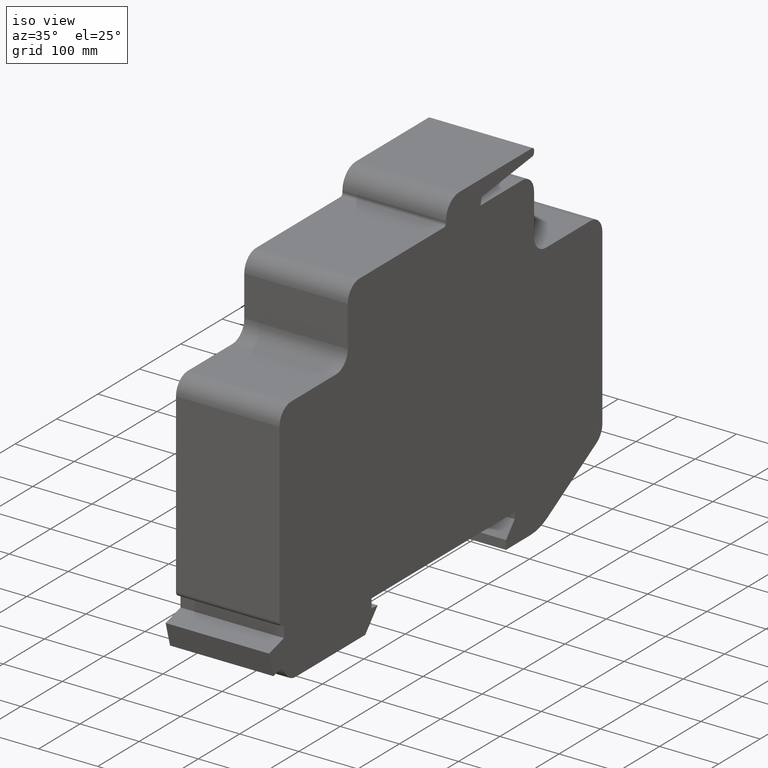
[diagram: clean part render]
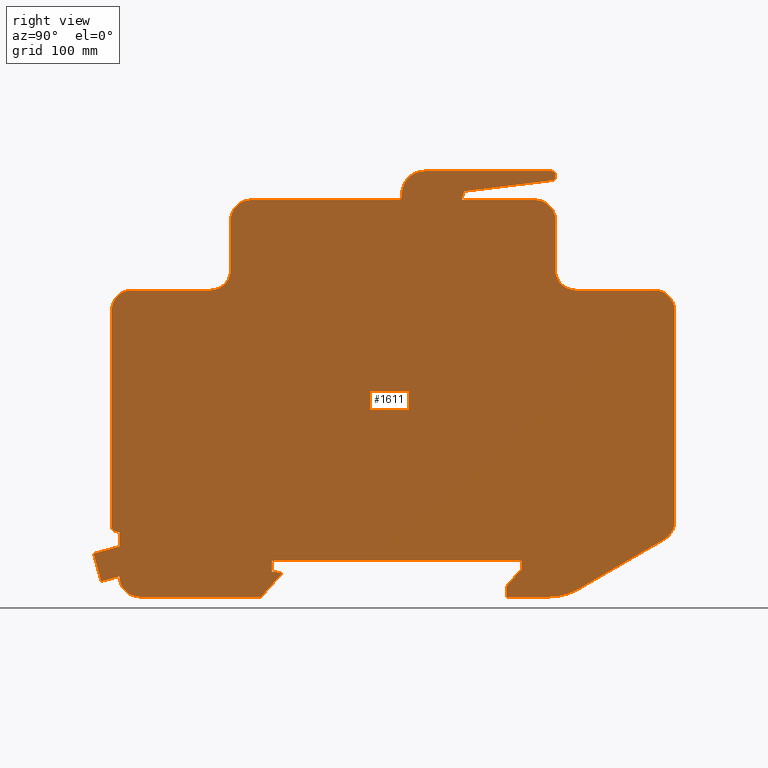
[diagram: tour spotlight — one face highlighted and labeled with its STEP entity id]
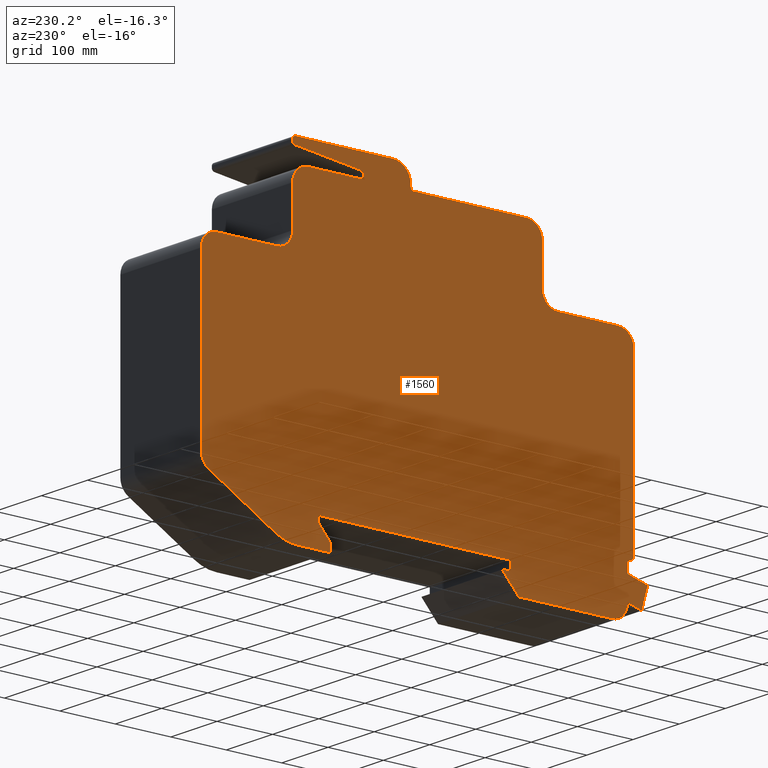
[diagram: tour spotlight — one face highlighted and labeled with its STEP entity id]
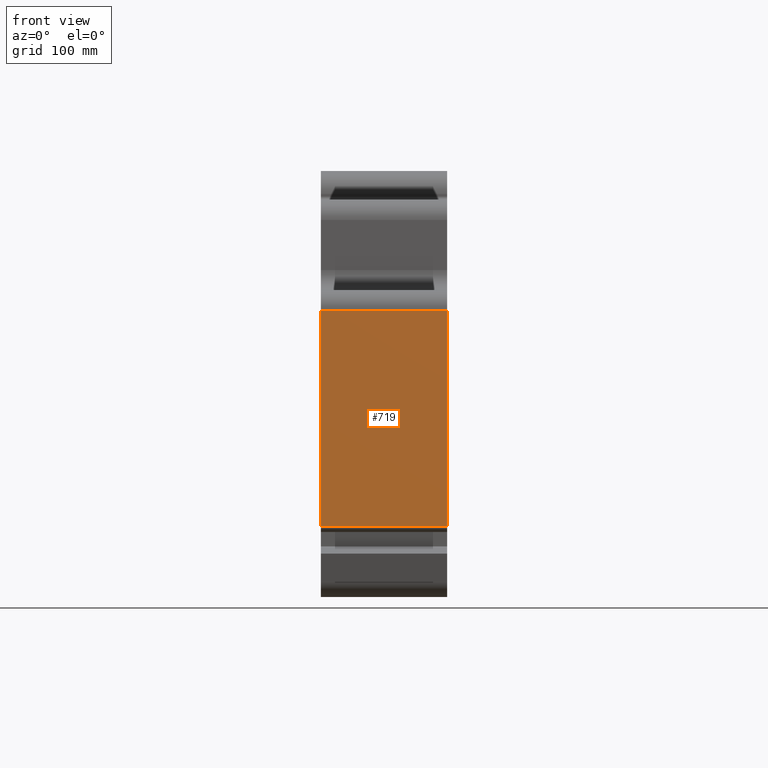
[diagram: tour spotlight — one face highlighted and labeled with its STEP entity id]
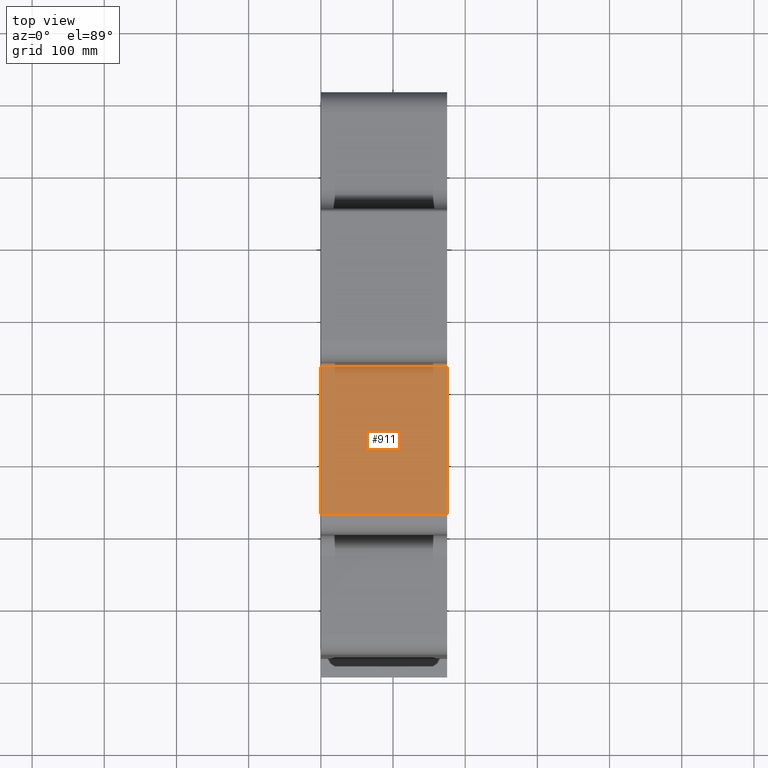
[diagram: tour spotlight — one face highlighted and labeled with its STEP entity id]
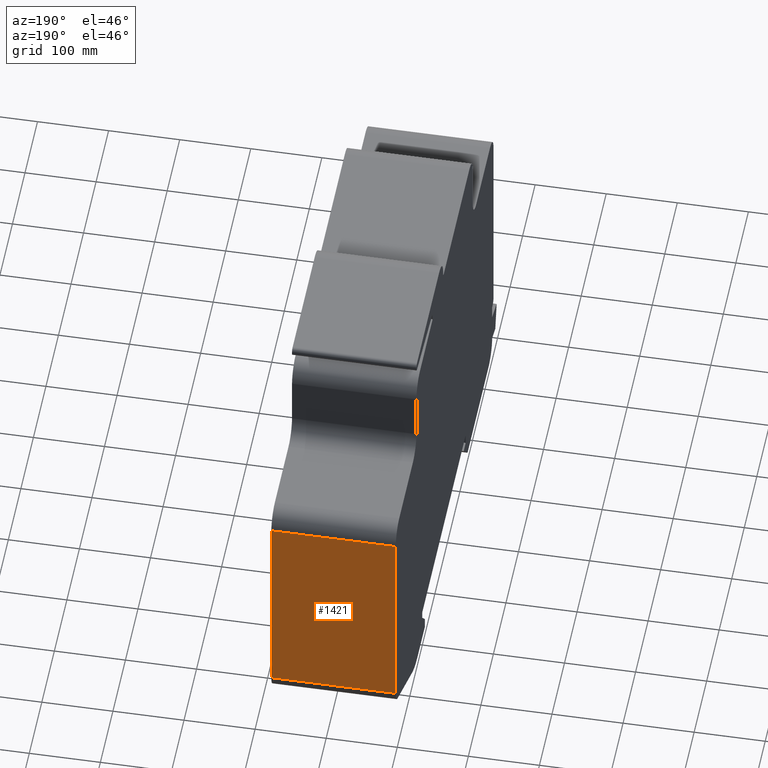
[diagram: tour spotlight — one face highlighted and labeled with its STEP entity id]
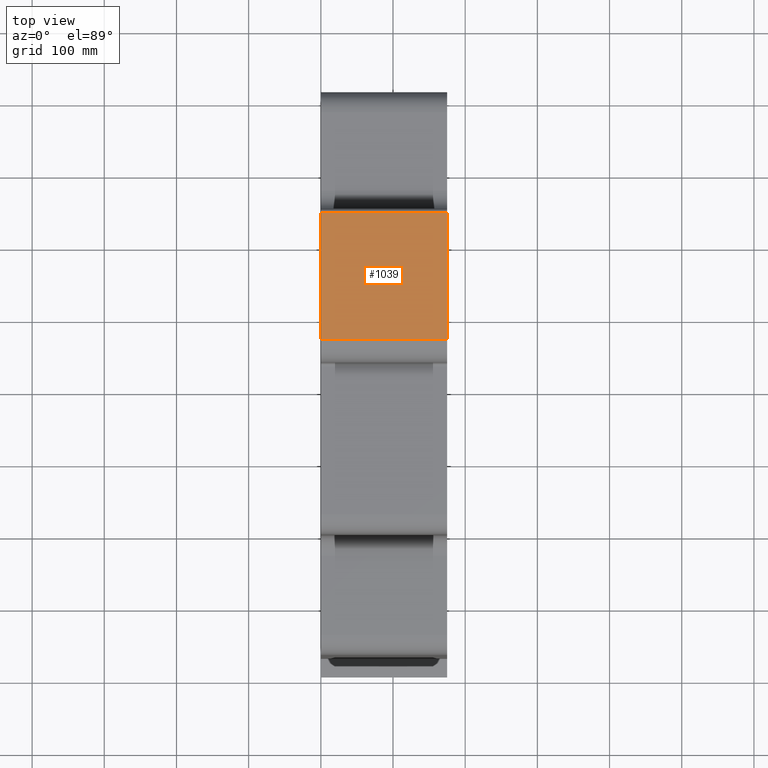
[diagram: tour spotlight — one face highlighted and labeled with its STEP entity id]
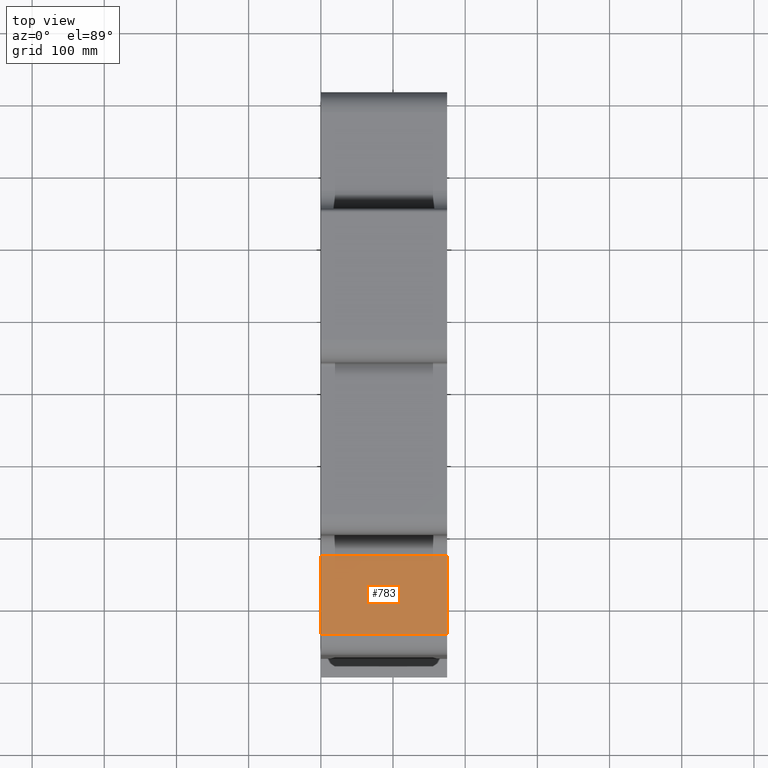
[diagram: tour spotlight — one face highlighted and labeled with its STEP entity id]
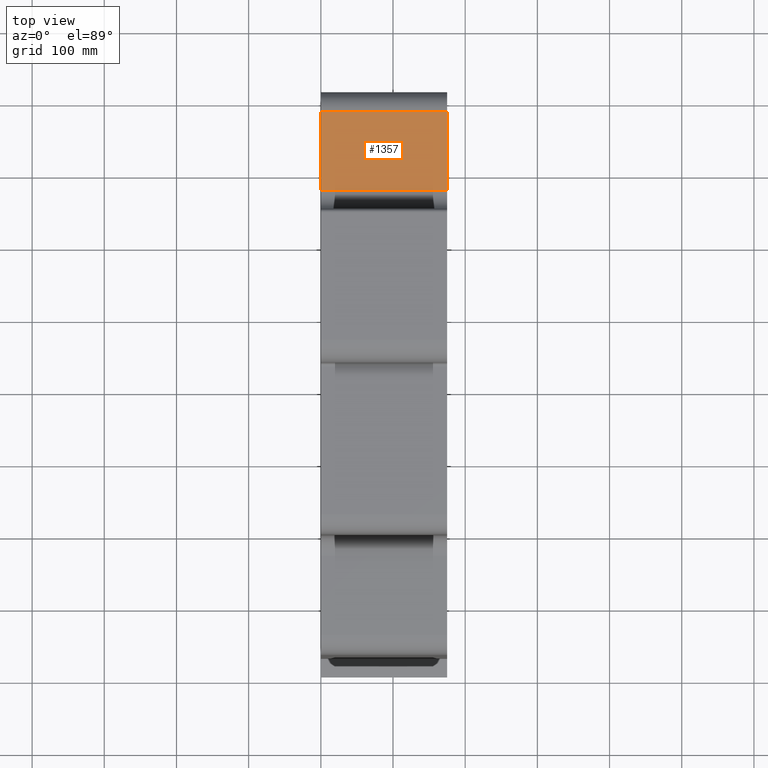
[diagram: tour spotlight — one face highlighted and labeled with its STEP entity id]
A machine part: a face-by-face anatomy tour. The part has 45 B-rep faces; the first image is the clean iso view, then the 8 largest visible faces are spotlighted one at a time (largest first), each with its STEP entity span.

Face 1 — right view, entity #1611. In plain terms, the highlighted planar face has unit normal (-1, 0, 0).
Definition (entity closure, byte-faithful):
#154=CARTESIAN_POINT('',(175.00000000000028,38.312738908399808,-50.0));
#155=VERTEX_POINT('',#154);
#156=CARTESIAN_POINT('',(175.00000000000028,-21.000000000000085,-50.0));
#157=VERTEX_POINT('',#156);
#158=CARTESIAN_POINT('',(175.00000000000028,38.312738908399808,-50.0));
#159=DIRECTION('',(0.0,-1.0,0.0));
#160=VECTOR('',#159,59.312738908399893);
#161=LINE('',#158,#160);
#162=EDGE_CURVE('',#155,#157,#161,.T.);
#194=CARTESIAN_POINT('',(175.00000000000028,-20.999999999999801,-35.000000000000284));
#195=VERTEX_POINT('',#194);
#196=CARTESIAN_POINT('',(175.00000000000028,-21.000000000000085,-50.0));
#197=DIRECTION('',(0.0,0.0,1.0));
#198=VECTOR('',#197,14.999999999999716);
#199=LINE('',#196,#198);
#200=EDGE_CURVE('',#157,#195,#199,.T.);
#225=CARTESIAN_POINT('',(175.00000000000028,0.0,-10.999999999999943));
#226=VERTEX_POINT('',#225);
#227=CARTESIAN_POINT('',(175.00000000000028,-20.999999999999801,-35.000000000000284));
#228=DIRECTION('',(0.0,0.658504607868509,0.752576694706886));
#229=VECTOR('',#228,31.890437438204074);
#230=LINE('',#227,#229);
#231=EDGE_CURVE('',#195,#226,#230,.T.);
#256=CARTESIAN_POINT('',(175.00000000000028,0.0,0.0));
#257=VERTEX_POINT('',#256);
#258=CARTESIAN_POINT('',(175.00000000000028,0.0,-10.999999999999943));
#259=DIRECTION('',(0.0,0.0,1.0));
#260=VECTOR('',#259,10.999999999999943);
#261=LINE('',#258,#260);
#262=EDGE_CURVE('',#226,#257,#261,.T.);
#287=CARTESIAN_POINT('',(175.00000000000028,-345.99999999999994,-3.155444E-029));
#288=VERTEX_POINT('',#287);
#289=CARTESIAN_POINT('',(175.00000000000028,0.0,0.0));
#290=DIRECTION('',(0.0,-1.0,0.0));
#291=VECTOR('',#290,345.99999999999994);
#292=LINE('',#289,#291);
#293=EDGE_CURVE('',#257,#288,#292,.T.);
#318=CARTESIAN_POINT('',(175.00000000000028,-345.99999999999994,-15.000000000000142));
#319=VERTEX_POINT('',#318);
#320=CARTESIAN_POINT('',(175.00000000000028,-345.99999999999994,-3.155444E-029));
#321=DIRECTION('',(0.0,0.0,-1.0));
#322=VECTOR('',#321,15.000000000000142);
#323=LINE('',#320,#322);
#324=EDGE_CURVE('',#288,#319,#323,.T.);
#349=CARTESIAN_POINT('',(175.00000000000028,-330.99999999999994,-16.312329952900058));
#350=VERTEX_POINT('',#349);
#351=CARTESIAN_POINT('',(175.00000000000028,-345.99999999999994,-15.000000000000142));
#352=DIRECTION('',(0.0,0.996194698091682,-0.087155742748387));
#353=VECTOR('',#352,15.057297563151176);
#354=LINE('',#351,#353);
#355=EDGE_CURVE('',#319,#350,#354,.T.);
#380=CARTESIAN_POINT('',(175.00000000000028,-360.99999999999994,-50.0));
#381=VERTEX_POINT('',#380);
#382=CARTESIAN_POINT('',(175.00000000000028,-330.99999999999994,-16.312329952900058));
#383=DIRECTION('',(0.0,-0.665049669487373,-0.74679912768745));
#384=VECTOR('',#383,45.109412689618068);
#385=LINE('',#382,#384);
#386=EDGE_CURVE('',#350,#381,#385,.T.);
#411=CARTESIAN_POINT('',(175.00000000000028,-529.19999999999982,-50.000000000000099));
#412=VERTEX_POINT('',#411);
#413=CARTESIAN_POINT('',(175.00000000000028,-360.99999999999994,-49.999999999999979));
#414=DIRECTION('',(0.0,-1.0,0.0));
#415=VECTOR('',#414,168.19999999999987);
#416=LINE('',#413,#415);
#417=EDGE_CURVE('',#381,#412,#416,.T.);
#442=CARTESIAN_POINT('',(175.00000000000028,-557.20000000000005,-22.000000000000028));
#443=VERTEX_POINT('',#442);
#444=CARTESIAN_POINT('',(175.00000000000028,-529.19999999999982,-21.999999999999972));
#445=DIRECTION('',(-1.0,0.0,0.0));
#446=DIRECTION('',(0.0,-0.707106781186546,-0.707106781186549));
#447=AXIS2_PLACEMENT_3D('',#444,#445,#446);
#448=CIRCLE('',#447,28.000000000000124);
#449=EDGE_CURVE('',#412,#443,#448,.T.);
#475=CARTESIAN_POINT('',(175.00000000000028,-557.20000000000005,-21.514537093899762));
#476=VERTEX_POINT('',#475);
#477=CARTESIAN_POINT('',(175.00000000000028,-557.20000000000005,-22.000000000000028));
#478=DIRECTION('',(0.0,0.0,1.0));
#479=VECTOR('',#478,0.485462906100267);
#480=LINE('',#477,#479);
#481=EDGE_CURVE('',#443,#476,#480,.T.);
#506=CARTESIAN_POINT('',(175.00000000000028,-582.49424544860267,-28.540716385189526));
#507=VERTEX_POINT('',#506);
#508=CARTESIAN_POINT('',(175.00000000000028,-557.20000000000005,-21.514537093899762));
#509=DIRECTION('',(0.0,-0.96351790962983,-0.267643863786493));
#510=VECTOR('',#509,26.251972273478877);
#511=LINE('',#508,#510);
#512=EDGE_CURVE('',#476,#507,#511,.T.);
#537=CARTESIAN_POINT('',(175.00000000000028,-593.20000000004075,9.999999999966299));
#538=VERTEX_POINT('',#537);
#539=CARTESIAN_POINT('',(175.00000000000028,-582.49424544860267,-28.540716385189526));
#540=DIRECTION('',(0.0,-0.267643863786234,0.963517909629902));
#541=VECTOR('',#540,39.999999999958227);
#542=LINE('',#539,#541);
#543=EDGE_CURVE('',#507,#538,#542,.T.);
#568=CARTESIAN_POINT('',(175.00000000000028,-557.20000000000005,20.000000000000455));
#569=VERTEX_POINT('',#568);
#570=CARTESIAN_POINT('',(175.00000000000028,-593.20000000004075,9.999999999966299));
#571=DIRECTION('',(0.0,0.963517909629783,0.267643863786662));
#572=VECTOR('',#571,37.363083384587163);
#573=LINE('',#570,#572);
#574=EDGE_CURVE('',#538,#569,#573,.T.);
#599=CARTESIAN_POINT('',(175.00000000000028,-557.20000000000005,40.0));
#600=VERTEX_POINT('',#599);
#601=CARTESIAN_POINT('',(175.00000000000028,-557.20000000000005,20.000000000000455));
#602=DIRECTION('',(0.0,0.0,1.0));
#603=VECTOR('',#602,19.999999999999545);
#604=LINE('',#601,#603);
#605=EDGE_CURVE('',#569,#600,#604,.T.);
#630=CARTESIAN_POINT('',(175.00000000000028,-560.20000000000005,39.999999999999922));
#631=VERTEX_POINT('',#630);
#632=CARTESIAN_POINT('',(175.00000000000028,-557.20000000000005,40.0));
#633=DIRECTION('',(0.0,-1.0,0.0));
#634=VECTOR('',#633,3.0);
#635=LINE('',#632,#634);
#636=EDGE_CURVE('',#600,#631,#635,.T.);
#661=CARTESIAN_POINT('',(175.00000000000028,-568.20000000000027,47.999999999999972));
#662=VERTEX_POINT('',#661);
#663=CARTESIAN_POINT('',(175.00000000000028,-560.20000000000005,48.000000000000043));
#664=DIRECTION('',(-1.0,0.0,0.0));
#665=DIRECTION('',(0.0,-0.707106781186542,-0.707106781186553));
#666=AXIS2_PLACEMENT_3D('',#663,#664,#665);
#667=CIRCLE('',#666,8.000000000000117);
#668=EDGE_CURVE('',#631,#662,#667,.T.);
#694=CARTESIAN_POINT('',(175.00000000000028,-568.20000000000005,346.99999999999994));
#695=VERTEX_POINT('',#694);
#696=CARTESIAN_POINT('',(175.00000000000028,-568.20000000000027,47.999999999999972));
#697=DIRECTION('',(0.0,0.0,1.0));
#698=VECTOR('',#697,299.0);
#699=LINE('',#696,#698);
#700=EDGE_CURVE('',#662,#695,#699,.T.);
#725=CARTESIAN_POINT('',(175.00000000000028,-540.20000000000005,375.0));
#726=VERTEX_POINT('',#725);
#727=CARTESIAN_POINT('',(175.00000000000028,-540.19999999999993,347.0));
#728=DIRECTION('',(-1.0,0.0,0.0));
#729=DIRECTION('',(0.0,-0.707106781186549,0.707106781186546));
#730=AXIS2_PLACEMENT_3D('',#727,#728,#729);
#731=CIRCLE('',#730,27.999999999999968);
#732=EDGE_CURVE('',#695,#726,#731,.T.);
#758=CARTESIAN_POINT('',(175.00000000000028,-431.19999999999976,375.0));
#759=VERTEX_POINT('',#758);
#760=CARTESIAN_POINT('',(175.00000000000028,-540.20000000000005,375.0));
#761=DIRECTION('',(0.0,1.0,0.0));
#762=VECTOR('',#761,109.00000000000034);
#763=LINE('',#760,#762);
#764=EDGE_CURVE('',#726,#759,#763,.T.);
#789=CARTESIAN_POINT('',(175.00000000000028,-403.19999999999982,403.00000000000023));
#790=VERTEX_POINT('',#789);
#791=CARTESIAN_POINT('',(175.00000000000028,-431.19999999999959,402.99999999999989));
#792=DIRECTION('',(1.0,0.0,0.0));
#793=DIRECTION('',(0.0,0.707106781186551,-0.707106781186544));
#794=AXIS2_PLACEMENT_3D('',#791,#792,#793);
#795=CIRCLE('',#794,27.999999999999918);
#796=EDGE_CURVE('',#759,#790,#795,.T.);
#822=CARTESIAN_POINT('',(175.00000000000028,-403.20000000000022,472.0));
#823=VERTEX_POINT('',#822);
#824=CARTESIAN_POINT('',(175.00000000000028,-403.19999999999982,403.00000000000023));
#825=DIRECTION('',(0.0,0.0,1.0));
#826=VECTOR('',#825,68.999999999999773);
#827=LINE('',#824,#826);
#828=EDGE_CURVE('',#790,#823,#827,.T.);
#853=CARTESIAN_POINT('',(175.00000000000028,-375.2000000000001,499.99999999999994));
#854=VERTEX_POINT('',#853);
#855=CARTESIAN_POINT('',(175.00000000000028,-375.20000000000027,471.99999999999989));
#856=DIRECTION('',(-1.0,0.0,0.0));
#857=DIRECTION('',(0.0,-0.707106781186545,0.70710678118655));
#858=AXIS2_PLACEMENT_3D('',#855,#856,#857);
#859=CIRCLE('',#858,28.000000000000004);
#860=EDGE_CURVE('',#823,#854,#859,.T.);
#886=CARTESIAN_POINT('',(175.00000000000028,-171.20000000000005,499.99999999999994));
#887=VERTEX_POINT('',#886);
#888=CARTESIAN_POINT('',(175.00000000000028,-375.2000000000001,500.00000000000205));
#889=DIRECTION('',(0.0,1.0,0.0));
#890=VECTOR('',#889,204.00000000000006);
#891=LINE('',#888,#890);
#892=EDGE_CURVE('',#854,#887,#891,.T.);
#917=CARTESIAN_POINT('',(175.00000000000028,-166.20000000000005,504.99999999999989));
#918=VERTEX_POINT('',#917);
#919=CARTESIAN_POINT('',(175.00000000000028,-171.20000000000005,504.99999999999989));
#920=DIRECTION('',(1.0,0.0,0.0));
#921=DIRECTION('',(0.0,0.707106781186542,-0.707106781186553));
#922=AXIS2_PLACEMENT_3D('',#919,#920,#921);
#923=CIRCLE('',#922,4.999999999999964);
#924=EDGE_CURVE('',#887,#918,#923,.T.);
#950=CARTESIAN_POINT('',(175.00000000000028,-166.1999999999999,508.00000000000006));
#951=VERTEX_POINT('',#950);
#952=CARTESIAN_POINT('',(175.00000000000028,-166.20000000000005,504.99999999999989));
#953=DIRECTION('',(0.0,0.0,1.0));
#954=VECTOR('',#953,3.000000000000171);
#955=LINE('',#952,#954);
#956=EDGE_CURVE('',#918,#951,#955,.T.);
#981=CARTESIAN_POINT('',(175.00000000000028,-134.19999999999987,540.0));
#982=VERTEX_POINT('',#981);
#983=CARTESIAN_POINT('',(175.00000000000028,-134.19999999999987,508.00000000000006));
#984=DIRECTION('',(-1.0,0.0,0.0));
#985=DIRECTION('',(0.0,-0.707106781186547,0.707106781186548));
#986=AXIS2_PLACEMENT_3D('',#983,#984,#985);
#987=CIRCLE('',#986,31.999999999999989);
#988=EDGE_CURVE('',#951,#982,#987,.T.);
#1014=CARTESIAN_POINT('',(175.00000000000028,41.799999999999784,540.00000000000011));
#1015=VERTEX_POINT('',#1014);
#1016=CARTESIAN_POINT('',(175.00000000000028,-134.19999999999987,540.0));
#1017=DIRECTION('',(0.0,1.0,0.0));
#1018=VECTOR('',#1017,175.99999999999966);
#1019=LINE('',#1016,#1018);
#1020=EDGE_CURVE('',#982,#1015,#1019,.T.);
#1045=CARTESIAN_POINT('',(175.00000000000028,46.799999999999784,535.0));
#1046=VERTEX_POINT('',#1045);
#1047=CARTESIAN_POINT('',(175.00000000000028,41.799999999999784,535.0));
#1048=DIRECTION('',(-1.0,0.0,0.0));
#1049=DIRECTION('',(0.0,0.707106781186553,0.707106781186542));
#1050=AXIS2_PLACEMENT_3D('',#1047,#1048,#1049);
#1051=CIRCLE('',#1050,5.000000000000036);
#1052=EDGE_CURVE('',#1015,#1046,#1051,.T.);
#1078=CARTESIAN_POINT('',(175.00000000000028,46.799999999999784,531.93792574384008));
#1079=VERTEX_POINT('',#1078);
#1080=CARTESIAN_POINT('',(175.00000000000028,46.799999999999784,535.0));
#1081=DIRECTION('',(0.0,0.0,-1.0));
#1082=VECTOR('',#1081,3.062074256159917);
#1083=LINE('',#1080,#1082);
#1084=EDGE_CURVE('',#1046,#1079,#1083,.T.);
#1109=CARTESIAN_POINT('',(175.00000000000028,42.409346717013108,526.97519498563202));
#1110=VERTEX_POINT('',#1109);
#1111=CARTESIAN_POINT('',(175.00000000000028,41.799999999999642,531.93792574384008));
#1112=DIRECTION('',(-1.0,0.0,0.0));
#1113=DIRECTION('',(0.0,0.748955720788176,-0.662620048216672));
#1114=AXIS2_PLACEMENT_3D('',#1111,#1112,#1113);
#1115=CIRCLE('',#1114,5.000000000000018);
#1116=EDGE_CURVE('',#1079,#1110,#1115,.T.);
#1142=CARTESIAN_POINT('',(175.00000000000028,-79.553829072486621,511.99999999999699));
#1143=VERTEX_POINT('',#1142);
#1144=CARTESIAN_POINT('',(175.00000000000028,42.409346717013108,526.97519498563202));
#1145=DIRECTION('',(0.0,-0.992546151641325,-0.121869343405127));
#1146=VECTOR('',#1145,122.87909795208543);
#1147=LINE('',#1144,#1146);
#1148=EDGE_CURVE('',#1110,#1143,#1147,.T.);
#1173=CARTESIAN_POINT('',(175.00000000000028,-82.769219381656853,500.0));
#1174=VERTEX_POINT('',#1173);
#1175=CARTESIAN_POINT('',(175.00000000000028,-79.553829072486621,511.99999999999699));
#1176=DIRECTION('',(0.0,-0.258819045102338,-0.965925826289117));
#1177=VECTOR('',#1176,12.423314164917247);
#1178=LINE('',#1175,#1177);
#1179=EDGE_CURVE('',#1143,#1174,#1178,.T.);
#1204=CARTESIAN_POINT('',(175.00000000000028,18.799999999999955,500.00000000000006));
#1205=VERTEX_POINT('',#1204);
#1206=CARTESIAN_POINT('',(175.00000000000028,-82.769219381656853,500.00000000000358));
#1207=DIRECTION('',(0.0,1.0,0.0));
#1208=VECTOR('',#1207,101.56921938165681);
#1209=LINE('',#1206,#1208);
#1210=EDGE_CURVE('',#1174,#1205,#1209,.T.);
#1235=CARTESIAN_POINT('',(175.00000000000028,46.799999999999926,471.99999999999994));
#1236=VERTEX_POINT('',#1235);
#1237=CARTESIAN_POINT('',(175.00000000000028,18.799999999999955,472.0));
#1238=DIRECTION('',(-1.0,0.0,0.0));
#1239=DIRECTION('',(0.0,0.707106781186549,0.707106781186546));
#1240=AXIS2_PLACEMENT_3D('',#1237,#1238,#1239);
#1241=CIRCLE('',#1240,28.000000000000039);
#1242=EDGE_CURVE('',#1205,#1236,#1241,.T.);
#1268=CARTESIAN_POINT('',(175.00000000000028,46.799999999999784,403.0));
#1269=VERTEX_POINT('',#1268);
#1270=CARTESIAN_POINT('',(175.00000000000028,46.799999999999926,471.99999999999994));
#1271=DIRECTION('',(0.0,0.0,-1.0));
#1272=VECTOR('',#1271,69.0);
#1273=LINE('',#1270,#1272);
#1274=EDGE_CURVE('',#1236,#1269,#1273,.T.);
#1299=CARTESIAN_POINT('',(175.00000000000028,74.799999999999898,374.99999999999994));
#1300=VERTEX_POINT('',#1299);
#1301=CARTESIAN_POINT('',(175.00000000000028,74.799999999999898,403.0));
#1302=DIRECTION('',(1.0,0.0,0.0));
#1303=DIRECTION('',(0.0,-0.707106781186547,-0.707106781186548));
#1304=AXIS2_PLACEMENT_3D('',#1301,#1302,#1303);
#1305=CIRCLE('',#1304,28.000000000000075);
#1306=EDGE_CURVE('',#1269,#1300,#1305,.T.);
#1332=CARTESIAN_POINT('',(175.00000000000028,183.79999999999995,375.0));
#1333=VERTEX_POINT('',#1332);
#1334=CARTESIAN_POINT('',(175.00000000000028,74.799999999999898,374.99999999999994));
#1335=DIRECTION('',(0.0,1.0,0.0));
#1336=VECTOR('',#1335,109.00000000000006);
#1337=LINE('',#1334,#1336);
#1338=EDGE_CURVE('',#1300,#1333,#1337,.T.);
#1363=CARTESIAN_POINT('',(175.00000000000028,211.80000000000007,346.99999999999994));
#1364=VERTEX_POINT('',#1363);
#1365=CARTESIAN_POINT('',(175.00000000000028,183.79999999999995,346.99999999999989));
#1366=DIRECTION('',(-1.0,0.0,0.0));
#1367=DIRECTION('',(0.0,0.707106781186547,0.707106781186548));
#1368=AXIS2_PLACEMENT_3D('',#1365,#1366,#1367);
#1369=CIRCLE('',#1368,28.000000000000075);
#1370=EDGE_CURVE('',#1333,#1364,#1369,.T.);
#1396=CARTESIAN_POINT('',(175.00000000000028,211.79999999999978,54.143471326499935));
#1397=VERTEX_POINT('',#1396);
#1398=CARTESIAN_POINT('',(175.00000000000028,211.80000000000007,346.99999999999994));
#1399=DIRECTION('',(0.0,0.0,-1.0));
#1400=VECTOR('',#1399,292.85652867350001);
#1401=LINE('',#1398,#1400);
#1402=EDGE_CURVE('',#1364,#1397,#1401,.T.);
#1427=CARTESIAN_POINT('',(175.00000000000028,197.82901557516368,29.911535333025952));
#1428=VERTEX_POINT('',#1427);
#1429=CARTESIAN_POINT('',(175.00000000000028,183.79999999999995,54.143471326499494));
#1430=DIRECTION('',(-1.0,0.0,0.0));
#1431=DIRECTION('',(0.0,0.866324497674392,-0.499481595986491));
#1432=AXIS2_PLACEMENT_3D('',#1429,#1430,#1431);
#1433=CIRCLE('',#1432,27.999999999999623);
#1434=EDGE_CURVE('',#1397,#1428,#1433,.T.);
#1460=CARTESIAN_POINT('',(175.00000000000028,78.395640551724313,-39.234102838497108));
#1461=VERTEX_POINT('',#1460);
#1462=CARTESIAN_POINT('',(175.00000000000028,197.82901557516368,29.911535333025952));
#1463=DIRECTION('',(0.0,-0.865426285480943,-0.50103627054202));
#1464=VECTOR('',#1463,138.00525478269549);
#1465=LINE('',#1462,#1464);
#1466=EDGE_CURVE('',#1428,#1461,#1465,.T.);
#1491=CARTESIAN_POINT('',(175.00000000000028,38.31273890839995,29.999999999999901));
#1492=DIRECTION('',(-1.0,0.0,0.0));
#1493=DIRECTION('',(0.0,0.259397103413651,-0.965770750613523));
#1494=AXIS2_PLACEMENT_3D('',#1491,#1492,#1493);
#1495=CIRCLE('',#1494,79.999999999999901);
#1496=EDGE_CURVE('',#1461,#155,#1495,.T.);
#1561=CARTESIAN_POINT('',(175.00000000000028,38.312738908399808,-50.0));
#1562=DIRECTION('',(-1.0,0.0,0.0));
#1563=DIRECTION('',(0.0,0.0,1.0));
#1564=AXIS2_PLACEMENT_3D('',#1561,#1562,#1563);
#1565=PLANE('',#1564);
#1566=ORIENTED_EDGE('',*,*,#162,.F.);
#1567=ORIENTED_EDGE('',*,*,#1496,.F.);
#1568=ORIENTED_EDGE('',*,*,#1466,.F.);
#1569=ORIENTED_EDGE('',*,*,#1434,.F.);
#1570=ORIENTED_EDGE('',*,*,#1402,.F.);
#1571=ORIENTED_EDGE('',*,*,#1370,.F.);
#1572=ORIENTED_EDGE('',*,*,#1338,.F.);
#1573=ORIENTED_EDGE('',*,*,#1306,.F.);
#1574=ORIENTED_EDGE('',*,*,#1274,.F.);
#1575=ORIENTED_EDGE('',*,*,#1242,.F.);
#1576=ORIENTED_EDGE('',*,*,#1210,.F.);
#1577=ORIENTED_EDGE('',*,*,#1179,.F.);
#1578=ORIENTED_EDGE('',*,*,#1148,.F.);
#1579=ORIENTED_EDGE('',*,*,#1116,.F.);
#1580=ORIENTED_EDGE('',*,*,#1084,.F.);
#1581=ORIENTED_EDGE('',*,*,#1052,.F.);
#1582=ORIENTED_EDGE('',*,*,#1020,.F.);
#1583=ORIENTED_EDGE('',*,*,#988,.F.);
#1584=ORIENTED_EDGE('',*,*,#956,.F.);
#1585=ORIENTED_EDGE('',*,*,#924,.F.);
#1586=ORIENTED_EDGE('',*,*,#892,.F.);
#1587=ORIENTED_EDGE('',*,*,#860,.F.);
#1588=ORIENTED_EDGE('',*,*,#828,.F.);
#1589=ORIENTED_EDGE('',*,*,#796,.F.);
#1590=ORIENTED_EDGE('',*,*,#764,.F.);
#1591=ORIENTED_EDGE('',*,*,#732,.F.);
#1592=ORIENTED_EDGE('',*,*,#700,.F.);
#1593=ORIENTED_EDGE('',*,*,#668,.F.);
#1594=ORIENTED_EDGE('',*,*,#636,.F.);
#1595=ORIENTED_EDGE('',*,*,#605,.F.);
#1596=ORIENTED_EDGE('',*,*,#574,.F.);
#1597=ORIENTED_EDGE('',*,*,#543,.F.);
#1598=ORIENTED_EDGE('',*,*,#512,.F.);
#1599=ORIENTED_EDGE('',*,*,#481,.F.);
#1600=ORIENTED_EDGE('',*,*,#449,.F.);
#1601=ORIENTED_EDGE('',*,*,#417,.F.);
#1602=ORIENTED_EDGE('',*,*,#386,.F.);
#1603=ORIENTED_EDGE('',*,*,#355,.F.);
#1604=ORIENTED_EDGE('',*,*,#324,.F.);
#1605=ORIENTED_EDGE('',*,*,#293,.F.);
#1606=ORIENTED_EDGE('',*,*,#262,.F.);
#1607=ORIENTED_EDGE('',*,*,#231,.F.);
#1608=ORIENTED_EDGE('',*,*,#200,.F.);
#1609=EDGE_LOOP('',(#1566,#1567,#1568,#1569,#1570,#1571,#1572,#1573,#1574,#1575,#1576,#1577,#1578,#1579,#1580,#1581,#1582,#1583,#1584,#1585,#1586,#1587,#1588,#1589,#1590,#1591,#1592,#1593,#1594,#1595,#1596,#1597,#1598,#1599,#1600,#1601,#1602,#1603,#1604,#1605,#1606,#1607,#1608));
#1610=FACE_OUTER_BOUND('',#1609,.T.);
#1611=ADVANCED_FACE('',(#1610),#1565,.F.);

Face 2 — auxiliary view, entity #1560. In plain terms, the highlighted planar face has unit normal (-1, 0, 0).
Definition (entity closure, byte-faithful):
#164=CARTESIAN_POINT('',(0.0,-21.000000000000085,-50.0));
#165=VERTEX_POINT('',#164);
#172=CARTESIAN_POINT('',(0.0,38.312738908399808,-50.0));
#173=VERTEX_POINT('',#172);
#174=CARTESIAN_POINT('',(0.0,38.312738908399808,-50.0));
#175=DIRECTION('',(0.0,-1.0,0.0));
#176=VECTOR('',#175,59.312738908399893);
#177=LINE('',#174,#176);
#178=EDGE_CURVE('',#173,#165,#177,.T.);
#202=CARTESIAN_POINT('',(0.0,-20.999999999999801,-35.000000000000284));
#203=VERTEX_POINT('',#202);
#210=CARTESIAN_POINT('',(0.0,-21.000000000000085,-50.0));
#211=DIRECTION('',(0.0,0.0,1.0));
#212=VECTOR('',#211,14.999999999999716);
#213=LINE('',#210,#212);
#214=EDGE_CURVE('',#165,#203,#213,.T.);
#233=CARTESIAN_POINT('',(0.0,0.0,-10.999999999999943));
#234=VERTEX_POINT('',#233);
#241=CARTESIAN_POINT('',(0.0,-20.999999999999801,-35.000000000000284));
#242=DIRECTION('',(0.0,0.658504607868509,0.752576694706886));
#243=VECTOR('',#242,31.890437438204074);
#244=LINE('',#241,#243);
#245=EDGE_CURVE('',#203,#234,#244,.T.);
#264=CARTESIAN_POINT('',(0.0,0.0,0.0));
#265=VERTEX_POINT('',#264);
#272=CARTESIAN_POINT('',(0.0,0.0,-10.999999999999943));
#273=DIRECTION('',(0.0,0.0,1.0));
#274=VECTOR('',#273,10.999999999999943);
#275=LINE('',#272,#274);
#276=EDGE_CURVE('',#234,#265,#275,.T.);
#295=CARTESIAN_POINT('',(0.0,-345.99999999999994,-3.155444E-029));
#296=VERTEX_POINT('',#295);
#303=CARTESIAN_POINT('',(0.0,0.0,0.0));
#304=DIRECTION('',(0.0,-1.0,0.0));
#305=VECTOR('',#304,345.99999999999994);
#306=LINE('',#303,#305);
#307=EDGE_CURVE('',#265,#296,#306,.T.);
#326=CARTESIAN_POINT('',(0.0,-345.99999999999994,-15.000000000000142));
#327=VERTEX_POINT('',#326);
#334=CARTESIAN_POINT('',(0.0,-345.99999999999994,-3.155444E-029));
#335=DIRECTION('',(0.0,0.0,-1.0));
#336=VECTOR('',#335,15.000000000000142);
#337=LINE('',#334,#336);
#338=EDGE_CURVE('',#296,#327,#337,.T.);
#357=CARTESIAN_POINT('',(0.0,-330.99999999999994,-16.312329952900058));
#358=VERTEX_POINT('',#357);
#365=CARTESIAN_POINT('',(0.0,-345.99999999999994,-15.000000000000142));
#366=DIRECTION('',(0.0,0.996194698091682,-0.087155742748387));
#367=VECTOR('',#366,15.057297563151176);
#368=LINE('',#365,#367);
#369=EDGE_CURVE('',#327,#358,#368,.T.);
#388=CARTESIAN_POINT('',(0.0,-360.99999999999994,-50.0));
#389=VERTEX_POINT('',#388);
#396=CARTESIAN_POINT('',(0.0,-330.99999999999994,-16.312329952900058));
#397=DIRECTION('',(0.0,-0.665049669487373,-0.74679912768745));
#398=VECTOR('',#397,45.109412689618068);
#399=LINE('',#396,#398);
#400=EDGE_CURVE('',#358,#389,#399,.T.);
#419=CARTESIAN_POINT('',(0.0,-529.19999999999982,-50.000000000000099));
#420=VERTEX_POINT('',#419);
#427=CARTESIAN_POINT('',(0.0,-360.99999999999994,-50.0));
#428=DIRECTION('',(0.0,-1.0,0.0));
#429=VECTOR('',#428,168.19999999999987);
#430=LINE('',#427,#429);
#431=EDGE_CURVE('',#389,#420,#430,.T.);
#451=CARTESIAN_POINT('',(0.0,-557.20000000000005,-22.000000000000028));
#452=VERTEX_POINT('',#451);
#459=CARTESIAN_POINT('',(0.0,-529.19999999999982,-21.999999999999972));
#460=DIRECTION('',(-1.0,0.0,0.0));
#461=DIRECTION('',(0.0,-0.707106781186546,-0.707106781186549));
#462=AXIS2_PLACEMENT_3D('',#459,#460,#461);
#463=CIRCLE('',#462,28.000000000000124);
#464=EDGE_CURVE('',#420,#452,#463,.T.);
#483=CARTESIAN_POINT('',(0.0,-557.20000000000005,-21.514537093899762));
#484=VERTEX_POINT('',#483);
#491=CARTESIAN_POINT('',(0.0,-557.20000000000005,-22.000000000000028));
#492=DIRECTION('',(0.0,0.0,1.0));
#493=VECTOR('',#492,0.485462906100267);
#494=LINE('',#491,#493);
#495=EDGE_CURVE('',#452,#484,#494,.T.);
#514=CARTESIAN_POINT('',(0.0,-582.49424544860267,-28.540716385189526));
#515=VERTEX_POINT('',#514);
#522=CARTESIAN_POINT('',(0.0,-557.20000000000005,-21.514537093899762));
#523=DIRECTION('',(0.0,-0.96351790962983,-0.267643863786493));
#524=VECTOR('',#523,26.251972273478877);
#525=LINE('',#522,#524);
#526=EDGE_CURVE('',#484,#515,#525,.T.);
#545=CARTESIAN_POINT('',(0.0,-593.20000000004075,9.999999999966299));
#546=VERTEX_POINT('',#545);
#553=CARTESIAN_POINT('',(0.0,-582.49424544860267,-28.540716385189526));
#554=DIRECTION('',(0.0,-0.267643863786234,0.963517909629902));
#555=VECTOR('',#554,39.999999999958227);
#556=LINE('',#553,#555);
#557=EDGE_CURVE('',#515,#546,#556,.T.);
#576=CARTESIAN_POINT('',(0.0,-557.20000000000005,20.000000000000455));
#577=VERTEX_POINT('',#576);
#584=CARTESIAN_POINT('',(0.0,-593.20000000004075,9.999999999966299));
#585=DIRECTION('',(0.0,0.963517909629783,0.267643863786662));
#586=VECTOR('',#585,37.363083384587163);
#587=LINE('',#584,#586);
#588=EDGE_CURVE('',#546,#577,#587,.T.);
#607=CARTESIAN_POINT('',(0.0,-557.20000000000005,40.0));
#608=VERTEX_POINT('',#607);
#615=CARTESIAN_POINT('',(0.0,-557.20000000000005,20.000000000000455));
#616=DIRECTION('',(0.0,0.0,1.0));
#617=VECTOR('',#616,19.999999999999545);
#618=LINE('',#615,#617);
#619=EDGE_CURVE('',#577,#608,#618,.T.);
#638=CARTESIAN_POINT('',(0.0,-560.20000000000005,39.999999999999922));
#639=VERTEX_POINT('',#638);
#646=CARTESIAN_POINT('',(0.0,-557.20000000000005,40.0));
#647=DIRECTION('',(0.0,-1.0,0.0));
#648=VECTOR('',#647,3.0);
#649=LINE('',#646,#648);
#650=EDGE_CURVE('',#608,#639,#649,.T.);
#670=CARTESIAN_POINT('',(0.0,-568.20000000000027,47.999999999999972));
#671=VERTEX_POINT('',#670);
#678=CARTESIAN_POINT('',(0.0,-560.20000000000005,48.000000000000043));
#679=DIRECTION('',(-1.0,0.0,0.0));
#680=DIRECTION('',(0.0,-0.707106781186542,-0.707106781186553));
#681=AXIS2_PLACEMENT_3D('',#678,#679,#680);
#682=CIRCLE('',#681,8.000000000000117);
#683=EDGE_CURVE('',#639,#671,#682,.T.);
#702=CARTESIAN_POINT('',(0.0,-568.20000000000005,346.99999999999994));
#703=VERTEX_POINT('',#702);
#710=CARTESIAN_POINT('',(0.0,-568.20000000000027,47.999999999999972));
#711=DIRECTION('',(0.0,0.0,1.0));
#712=VECTOR('',#711,299.0);
#713=LINE('',#710,#712);
#714=EDGE_CURVE('',#671,#703,#713,.T.);
#734=CARTESIAN_POINT('',(0.0,-540.20000000000005,375.0));
#735=VERTEX_POINT('',#734);
#742=CARTESIAN_POINT('',(0.0,-540.19999999999993,347.0));
#743=DIRECTION('',(-1.0,0.0,0.0));
#744=DIRECTION('',(0.0,-0.707106781186549,0.707106781186546));
#745=AXIS2_PLACEMENT_3D('',#742,#743,#744);
#746=CIRCLE('',#745,27.999999999999968);
#747=EDGE_CURVE('',#703,#735,#746,.T.);
#766=CARTESIAN_POINT('',(0.0,-431.19999999999976,375.0));
#767=VERTEX_POINT('',#766);
#774=CARTESIAN_POINT('',(0.0,-540.20000000000005,375.0));
#775=DIRECTION('',(0.0,1.0,0.0));
#776=VECTOR('',#775,109.00000000000034);
#777=LINE('',#774,#776);
#778=EDGE_CURVE('',#735,#767,#777,.T.);
#798=CARTESIAN_POINT('',(0.0,-403.19999999999982,403.00000000000023));
#799=VERTEX_POINT('',#798);
#806=CARTESIAN_POINT('',(0.0,-431.19999999999959,402.99999999999989));
#807=DIRECTION('',(1.0,0.0,0.0));
#808=DIRECTION('',(0.0,0.707106781186551,-0.707106781186544));
#809=AXIS2_PLACEMENT_3D('',#806,#807,#808);
#810=CIRCLE('',#809,27.999999999999918);
#811=EDGE_CURVE('',#767,#799,#810,.T.);
#830=CARTESIAN_POINT('',(0.0,-403.20000000000022,472.0));
#831=VERTEX_POINT('',#830);
#838=CARTESIAN_POINT('',(0.0,-403.19999999999982,403.00000000000023));
#839=DIRECTION('',(0.0,0.0,1.0));
#840=VECTOR('',#839,68.999999999999773);
#841=LINE('',#838,#840);
#842=EDGE_CURVE('',#799,#831,#841,.T.);
#862=CARTESIAN_POINT('',(0.0,-375.2000000000001,499.99999999999994));
#863=VERTEX_POINT('',#862);
#870=CARTESIAN_POINT('',(0.0,-375.20000000000027,471.99999999999989));
#871=DIRECTION('',(-1.0,0.0,0.0));
#872=DIRECTION('',(0.0,-0.707106781186545,0.70710678118655));
#873=AXIS2_PLACEMENT_3D('',#870,#871,#872);
#874=CIRCLE('',#873,28.000000000000004);
#875=EDGE_CURVE('',#831,#863,#874,.T.);
#894=CARTESIAN_POINT('',(0.0,-171.20000000000005,499.99999999999994));
#895=VERTEX_POINT('',#894);
#902=CARTESIAN_POINT('',(0.0,-375.2000000000001,499.99999999999994));
#903=DIRECTION('',(0.0,1.0,0.0));
#904=VECTOR('',#903,204.00000000000006);
#905=LINE('',#902,#904);
#906=EDGE_CURVE('',#863,#895,#905,.T.);
#926=CARTESIAN_POINT('',(0.0,-166.20000000000005,504.99999999999989));
#927=VERTEX_POINT('',#926);
#934=CARTESIAN_POINT('',(0.0,-171.20000000000005,504.99999999999989));
#935=DIRECTION('',(1.0,0.0,0.0));
#936=DIRECTION('',(0.0,0.707106781186542,-0.707106781186553));
#937=AXIS2_PLACEMENT_3D('',#934,#935,#936);
#938=CIRCLE('',#937,4.999999999999964);
#939=EDGE_CURVE('',#895,#927,#938,.T.);
#958=CARTESIAN_POINT('',(0.0,-166.1999999999999,508.00000000000006));
#959=VERTEX_POINT('',#958);
#966=CARTESIAN_POINT('',(0.0,-166.20000000000005,504.99999999999989));
#967=DIRECTION('',(0.0,0.0,1.0));
#968=VECTOR('',#967,3.000000000000171);
#969=LINE('',#966,#968);
#970=EDGE_CURVE('',#927,#959,#969,.T.);
#990=CARTESIAN_POINT('',(0.0,-134.19999999999987,540.0));
#991=VERTEX_POINT('',#990);
#998=CARTESIAN_POINT('',(0.0,-134.19999999999987,508.00000000000006));
#999=DIRECTION('',(-1.0,0.0,0.0));
#1000=DIRECTION('',(0.0,-0.707106781186547,0.707106781186548));
#1001=AXIS2_PLACEMENT_3D('',#998,#999,#1000);
#1002=CIRCLE('',#1001,31.999999999999989);
#1003=EDGE_CURVE('',#959,#991,#1002,.T.);
#1022=CARTESIAN_POINT('',(0.0,41.799999999999784,540.00000000000011));
#1023=VERTEX_POINT('',#1022);
#1030=CARTESIAN_POINT('',(0.0,-134.19999999999987,540.0));
#1031=DIRECTION('',(0.0,1.0,0.0));
#1032=VECTOR('',#1031,175.99999999999966);
#1033=LINE('',#1030,#1032);
#1034=EDGE_CURVE('',#991,#1023,#1033,.T.);
#1054=CARTESIAN_POINT('',(0.0,46.799999999999784,535.0));
#1055=VERTEX_POINT('',#1054);
#1062=CARTESIAN_POINT('',(0.0,41.799999999999784,535.0));
#1063=DIRECTION('',(-1.0,0.0,0.0));
#1064=DIRECTION('',(0.0,0.707106781186553,0.707106781186542));
#1065=AXIS2_PLACEMENT_3D('',#1062,#1063,#1064);
#1066=CIRCLE('',#1065,5.000000000000036);
#1067=EDGE_CURVE('',#1023,#1055,#1066,.T.);
#1086=CARTESIAN_POINT('',(0.0,46.799999999999784,531.93792574384008));
#1087=VERTEX_POINT('',#1086);
#1094=CARTESIAN_POINT('',(0.0,46.799999999999784,535.0));
#1095=DIRECTION('',(0.0,0.0,-1.0));
#1096=VECTOR('',#1095,3.062074256159917);
#1097=LINE('',#1094,#1096);
#1098=EDGE_CURVE('',#1055,#1087,#1097,.T.);
#1118=CARTESIAN_POINT('',(0.0,42.409346717013108,526.97519498563202));
#1119=VERTEX_POINT('',#1118);
#1126=CARTESIAN_POINT('',(0.0,41.799999999999642,531.93792574384008));
#1127=DIRECTION('',(-1.0,0.0,0.0));
#1128=DIRECTION('',(0.0,0.748955720788176,-0.662620048216672));
#1129=AXIS2_PLACEMENT_3D('',#1126,#1127,#1128);
#1130=CIRCLE('',#1129,5.000000000000018);
#1131=EDGE_CURVE('',#1087,#1119,#1130,.T.);
#1150=CARTESIAN_POINT('',(0.0,-79.553829072486621,511.99999999999699));
#1151=VERTEX_POINT('',#1150);
#1158=CARTESIAN_POINT('',(0.0,42.409346717013108,526.97519498563202));
#1159=DIRECTION('',(0.0,-0.992546151641325,-0.121869343405127));
#1160=VECTOR('',#1159,122.87909795208543);
#1161=LINE('',#1158,#1160);
#1162=EDGE_CURVE('',#1119,#1151,#1161,.T.);
#1181=CARTESIAN_POINT('',(0.0,-82.769219381656853,500.0));
#1182=VERTEX_POINT('',#1181);
#1189=CARTESIAN_POINT('',(0.0,-79.553829072486621,511.99999999999699));
#1190=DIRECTION('',(0.0,-0.258819045102338,-0.965925826289117));
#1191=VECTOR('',#1190,12.423314164917247);
#1192=LINE('',#1189,#1191);
#1193=EDGE_CURVE('',#1151,#1182,#1192,.T.);
#1212=CARTESIAN_POINT('',(0.0,18.799999999999955,500.00000000000006));
#1213=VERTEX_POINT('',#1212);
#1220=CARTESIAN_POINT('',(0.0,-82.769219381656853,500.0));
#1221=DIRECTION('',(0.0,1.0,1.969975E-013));
#1222=VECTOR('',#1221,101.56921938165681);
#1223=LINE('',#1220,#1222);
#1224=EDGE_CURVE('',#1182,#1213,#1223,.T.);
#1244=CARTESIAN_POINT('',(0.0,46.799999999999926,471.99999999999994));
#1245=VERTEX_POINT('',#1244);
#1252=CARTESIAN_POINT('',(0.0,18.799999999999955,472.0));
#1253=DIRECTION('',(-1.0,0.0,0.0));
#1254=DIRECTION('',(0.0,0.707106781186549,0.707106781186546));
#1255=AXIS2_PLACEMENT_3D('',#1252,#1253,#1254);
#1256=CIRCLE('',#1255,28.000000000000039);
#1257=EDGE_CURVE('',#1213,#1245,#1256,.T.);
#1276=CARTESIAN_POINT('',(0.0,46.799999999999784,403.0));
#1277=VERTEX_POINT('',#1276);
#1284=CARTESIAN_POINT('',(0.0,46.799999999999926,471.99999999999994));
#1285=DIRECTION('',(0.0,0.0,-1.0));
#1286=VECTOR('',#1285,69.0);
#1287=LINE('',#1284,#1286);
#1288=EDGE_CURVE('',#1245,#1277,#1287,.T.);
#1308=CARTESIAN_POINT('',(0.0,74.799999999999898,374.99999999999994));
#1309=VERTEX_POINT('',#1308);
#1316=CARTESIAN_POINT('',(0.0,74.799999999999898,403.0));
#1317=DIRECTION('',(1.0,0.0,0.0));
#1318=DIRECTION('',(0.0,-0.707106781186547,-0.707106781186548));
#1319=AXIS2_PLACEMENT_3D('',#1316,#1317,#1318);
#1320=CIRCLE('',#1319,28.000000000000075);
#1321=EDGE_CURVE('',#1277,#1309,#1320,.T.);
#1340=CARTESIAN_POINT('',(0.0,183.79999999999995,375.0));
#1341=VERTEX_POINT('',#1340);
#1348=CARTESIAN_POINT('',(0.0,74.799999999999898,374.99999999999994));
#1349=DIRECTION('',(0.0,1.0,0.0));
#1350=VECTOR('',#1349,109.00000000000006);
#1351=LINE('',#1348,#1350);
#1352=EDGE_CURVE('',#1309,#1341,#1351,.T.);
#1372=CARTESIAN_POINT('',(0.0,211.80000000000007,346.99999999999994));
#1373=VERTEX_POINT('',#1372);
#1380=CARTESIAN_POINT('',(0.0,183.79999999999995,346.99999999999989));
#1381=DIRECTION('',(-1.0,0.0,0.0));
#1382=DIRECTION('',(0.0,0.707106781186547,0.707106781186548));
#1383=AXIS2_PLACEMENT_3D('',#1380,#1381,#1382);
#1384=CIRCLE('',#1383,28.000000000000075);
#1385=EDGE_CURVE('',#1341,#1373,#1384,.T.);
#1404=CARTESIAN_POINT('',(0.0,211.79999999999978,54.143471326499935));
#1405=VERTEX_POINT('',#1404);
#1412=CARTESIAN_POINT('',(0.0,211.80000000000007,346.99999999999994));
#1413=DIRECTION('',(0.0,0.0,-1.0));
#1414=VECTOR('',#1413,292.85652867350001);
#1415=LINE('',#1412,#1414);
#1416=EDGE_CURVE('',#1373,#1405,#1415,.T.);
#1436=CARTESIAN_POINT('',(0.0,197.82901557516368,29.911535333025952));
#1437=VERTEX_POINT('',#1436);
#1444=CARTESIAN_POINT('',(0.0,183.79999999999995,54.143471326499494));
#1445=DIRECTION('',(-1.0,0.0,0.0));
#1446=DIRECTION('',(0.0,0.866324497674392,-0.499481595986491));
#1447=AXIS2_PLACEMENT_3D('',#1444,#1445,#1446);
#1448=CIRCLE('',#1447,27.999999999999623);
#1449=EDGE_CURVE('',#1405,#1437,#1448,.T.);
#1468=CARTESIAN_POINT('',(0.0,78.395640551724313,-39.234102838497108));
#1469=VERTEX_POINT('',#1468);
#1476=CARTESIAN_POINT('',(0.0,197.82901557516368,29.911535333025952));
#1477=DIRECTION('',(0.0,-0.865426285480943,-0.50103627054202));
#1478=VECTOR('',#1477,138.00525478269549);
#1479=LINE('',#1476,#1478);
#1480=EDGE_CURVE('',#1437,#1469,#1479,.T.);
#1499=CARTESIAN_POINT('',(0.0,38.31273890839995,29.999999999999901));
#1500=DIRECTION('',(-1.0,0.0,0.0));
#1501=DIRECTION('',(0.0,0.259397103413651,-0.965770750613523));
#1502=AXIS2_PLACEMENT_3D('',#1499,#1500,#1501);
#1503=CIRCLE('',#1502,79.999999999999901);
#1504=EDGE_CURVE('',#1469,#173,#1503,.T.);
#1510=CARTESIAN_POINT('',(2.486900E-013,-191.90193956231639,258.71095243054549));
#1511=DIRECTION('',(-1.0,0.0,0.0));
#1512=DIRECTION('',(0.0,0.0,1.0));
#1513=AXIS2_PLACEMENT_3D('',#1510,#1511,#1512);
#1514=PLANE('',#1513);
#1515=ORIENTED_EDGE('',*,*,#1504,.T.);
#1516=ORIENTED_EDGE('',*,*,#178,.T.);
#1517=ORIENTED_EDGE('',*,*,#214,.T.);
#1518=ORIENTED_EDGE('',*,*,#245,.T.);
#1519=ORIENTED_EDGE('',*,*,#276,.T.);
#1520=ORIENTED_EDGE('',*,*,#307,.T.);
#1521=ORIENTED_EDGE('',*,*,#338,.T.);
#1522=ORIENTED_EDGE('',*,*,#369,.T.);
#1523=ORIENTED_EDGE('',*,*,#400,.T.);
#1524=ORIENTED_EDGE('',*,*,#431,.T.);
#1525=ORIENTED_EDGE('',*,*,#464,.T.);
#1526=ORIENTED_EDGE('',*,*,#495,.T.);
#1527=ORIENTED_EDGE('',*,*,#526,.T.);
#1528=ORIENTED_EDGE('',*,*,#557,.T.);
#1529=ORIENTED_EDGE('',*,*,#588,.T.);
#1530=ORIENTED_EDGE('',*,*,#619,.T.);
#1531=ORIENTED_EDGE('',*,*,#650,.T.);
#1532=ORIENTED_EDGE('',*,*,#683,.T.);
#1533=ORIENTED_EDGE('',*,*,#714,.T.);
#1534=ORIENTED_EDGE('',*,*,#747,.T.);
#1535=ORIENTED_EDGE('',*,*,#778,.T.);
#1536=ORIENTED_EDGE('',*,*,#811,.T.);
#1537=ORIENTED_EDGE('',*,*,#842,.T.);
#1538=ORIENTED_EDGE('',*,*,#875,.T.);
#1539=ORIENTED_EDGE('',*,*,#906,.T.);
#1540=ORIENTED_EDGE('',*,*,#939,.T.);
#1541=ORIENTED_EDGE('',*,*,#970,.T.);
#1542=ORIENTED_EDGE('',*,*,#1003,.T.);
#1543=ORIENTED_EDGE('',*,*,#1034,.T.);
#1544=ORIENTED_EDGE('',*,*,#1067,.T.);
#1545=ORIENTED_EDGE('',*,*,#1098,.T.);
#1546=ORIENTED_EDGE('',*,*,#1131,.T.);
#1547=ORIENTED_EDGE('',*,*,#1162,.T.);
#1548=ORIENTED_EDGE('',*,*,#1193,.T.);
#1549=ORIENTED_EDGE('',*,*,#1224,.T.);
#1550=ORIENTED_EDGE('',*,*,#1257,.T.);
#1551=ORIENTED_EDGE('',*,*,#1288,.T.);
#1552=ORIENTED_EDGE('',*,*,#1321,.T.);
#1553=ORIENTED_EDGE('',*,*,#1352,.T.);
#1554=ORIENTED_EDGE('',*,*,#1385,.T.);
#1555=ORIENTED_EDGE('',*,*,#1416,.T.);
#1556=ORIENTED_EDGE('',*,*,#1449,.T.);
#1557=ORIENTED_EDGE('',*,*,#1480,.T.);
#1558=EDGE_LOOP('',(#1515,#1516,#1517,#1518,#1519,#1520,#1521,#1522,#1523,#1524,#1525,#1526,#1527,#1528,#1529,#1530,#1531,#1532,#1533,#1534,#1535,#1536,#1537,#1538,#1539,#1540,#1541,#1542,#1543,#1544,#1545,#1546,#1547,#1548,#1549,#1550,#1551,#1552,#1553,#1554,#1555,#1556,#1557));
#1559=FACE_OUTER_BOUND('',#1558,.T.);
#1560=ADVANCED_FACE('',(#1559),#1514,.T.);

Face 3 — front view, entity #719. In plain terms, the highlighted planar face has unit normal (0, -1, 0).
Definition (entity closure, byte-faithful):
#661=CARTESIAN_POINT('',(175.00000000000028,-568.20000000000027,47.999999999999972));
#662=VERTEX_POINT('',#661);
#670=CARTESIAN_POINT('',(0.0,-568.20000000000027,47.999999999999972));
#671=VERTEX_POINT('',#670);
#672=CARTESIAN_POINT('',(0.0,-568.20000000000027,47.999999999999972));
#673=DIRECTION('',(1.0,0.0,0.0));
#674=VECTOR('',#673,175.00000000000028);
#675=LINE('',#672,#674);
#676=EDGE_CURVE('',#671,#662,#675,.T.);
#689=CARTESIAN_POINT('',(0.0,-568.20000000000027,47.999999999999972));
#690=DIRECTION('',(0.0,-1.0,0.0));
#691=DIRECTION('',(0.0,0.0,-1.0));
#692=AXIS2_PLACEMENT_3D('',#689,#690,#691);
#693=PLANE('',#692);
#694=CARTESIAN_POINT('',(175.00000000000028,-568.20000000000005,346.99999999999994));
#695=VERTEX_POINT('',#694);
#696=CARTESIAN_POINT('',(175.00000000000028,-568.20000000000027,47.999999999999972));
#697=DIRECTION('',(0.0,0.0,1.0));
#698=VECTOR('',#697,299.0);
#699=LINE('',#696,#698);
#700=EDGE_CURVE('',#662,#695,#699,.T.);
#701=ORIENTED_EDGE('',*,*,#700,.T.);
#702=CARTESIAN_POINT('',(0.0,-568.20000000000005,346.99999999999994));
#703=VERTEX_POINT('',#702);
#704=CARTESIAN_POINT('',(0.0,-568.20000000000005,346.99999999999994));
#705=DIRECTION('',(1.0,0.0,0.0));
#706=VECTOR('',#705,175.00000000000028);
#707=LINE('',#704,#706);
#708=EDGE_CURVE('',#703,#695,#707,.T.);
#709=ORIENTED_EDGE('',*,*,#708,.F.);
#710=CARTESIAN_POINT('',(0.0,-568.20000000000027,47.999999999999972));
#711=DIRECTION('',(0.0,0.0,1.0));
#712=VECTOR('',#711,299.0);
#713=LINE('',#710,#712);
#714=EDGE_CURVE('',#671,#703,#713,.T.);
#715=ORIENTED_EDGE('',*,*,#714,.F.);
#716=ORIENTED_EDGE('',*,*,#676,.T.);
#717=EDGE_LOOP('',(#701,#709,#715,#716));
#718=FACE_OUTER_BOUND('',#717,.T.);
#719=ADVANCED_FACE('',(#718),#693,.T.);

Face 4 — top view, entity #911. In plain terms, the highlighted planar face has unit normal (0, 0, 1).
Definition (entity closure, byte-faithful):
#853=CARTESIAN_POINT('',(175.00000000000028,-375.2000000000001,499.99999999999994));
#854=VERTEX_POINT('',#853);
#862=CARTESIAN_POINT('',(0.0,-375.2000000000001,499.99999999999994));
#863=VERTEX_POINT('',#862);
#864=CARTESIAN_POINT('',(0.0,-375.2000000000001,499.99999999999994));
#865=DIRECTION('',(1.0,0.0,0.0));
#866=VECTOR('',#865,175.00000000000028);
#867=LINE('',#864,#866);
#868=EDGE_CURVE('',#863,#854,#867,.T.);
#881=CARTESIAN_POINT('',(0.0,-184.85769145390009,500.00000000000006));
#882=DIRECTION('',(0.0,0.0,1.0));
#883=DIRECTION('',(1.0,0.0,0.0));
#884=AXIS2_PLACEMENT_3D('',#881,#882,#883);
#885=PLANE('',#884);
#886=CARTESIAN_POINT('',(175.00000000000028,-171.20000000000005,499.99999999999994));
#887=VERTEX_POINT('',#886);
#888=CARTESIAN_POINT('',(175.00000000000028,-375.2000000000001,500.00000000000205));
#889=DIRECTION('',(0.0,1.0,0.0));
#890=VECTOR('',#889,204.00000000000006);
#891=LINE('',#888,#890);
#892=EDGE_CURVE('',#854,#887,#891,.T.);
#893=ORIENTED_EDGE('',*,*,#892,.T.);
#894=CARTESIAN_POINT('',(0.0,-171.20000000000005,499.99999999999994));
#895=VERTEX_POINT('',#894);
#896=CARTESIAN_POINT('',(0.0,-171.20000000000005,499.99999999999994));
#897=DIRECTION('',(1.0,0.0,0.0));
#898=VECTOR('',#897,175.00000000000028);
#899=LINE('',#896,#898);
#900=EDGE_CURVE('',#895,#887,#899,.T.);
#901=ORIENTED_EDGE('',*,*,#900,.F.);
#902=CARTESIAN_POINT('',(0.0,-375.2000000000001,499.99999999999994));
#903=DIRECTION('',(0.0,1.0,0.0));
#904=VECTOR('',#903,204.00000000000006);
#905=LINE('',#902,#904);
#906=EDGE_CURVE('',#863,#895,#905,.T.);
#907=ORIENTED_EDGE('',*,*,#906,.F.);
#908=ORIENTED_EDGE('',*,*,#868,.T.);
#909=EDGE_LOOP('',(#893,#901,#907,#908));
#910=FACE_OUTER_BOUND('',#909,.T.);
#911=ADVANCED_FACE('',(#910),#885,.T.);

Face 5 — auxiliary view, entity #1421. In plain terms, the highlighted planar face has unit normal (0, 1, 0).
Definition (entity closure, byte-faithful):
#1363=CARTESIAN_POINT('',(175.00000000000028,211.80000000000007,346.99999999999994));
#1364=VERTEX_POINT('',#1363);
#1372=CARTESIAN_POINT('',(0.0,211.80000000000007,346.99999999999994));
#1373=VERTEX_POINT('',#1372);
#1374=CARTESIAN_POINT('',(0.0,211.80000000000007,346.99999999999994));
#1375=DIRECTION('',(1.0,0.0,0.0));
#1376=VECTOR('',#1375,175.00000000000028);
#1377=LINE('',#1374,#1376);
#1378=EDGE_CURVE('',#1373,#1364,#1377,.T.);
#1391=CARTESIAN_POINT('',(0.0,211.80000000000007,346.99999999999994));
#1392=DIRECTION('',(0.0,1.0,0.0));
#1393=DIRECTION('',(0.0,0.0,1.0));
#1394=AXIS2_PLACEMENT_3D('',#1391,#1392,#1393);
#1395=PLANE('',#1394);
#1396=CARTESIAN_POINT('',(175.00000000000028,211.79999999999978,54.143471326499935));
#1397=VERTEX_POINT('',#1396);
#1398=CARTESIAN_POINT('',(175.00000000000028,211.80000000000007,346.99999999999994));
#1399=DIRECTION('',(0.0,0.0,-1.0));
#1400=VECTOR('',#1399,292.85652867350001);
#1401=LINE('',#1398,#1400);
#1402=EDGE_CURVE('',#1364,#1397,#1401,.T.);
#1403=ORIENTED_EDGE('',*,*,#1402,.T.);
#1404=CARTESIAN_POINT('',(0.0,211.79999999999978,54.143471326499935));
#1405=VERTEX_POINT('',#1404);
#1406=CARTESIAN_POINT('',(0.0,211.79999999999978,54.143471326499935));
#1407=DIRECTION('',(1.0,0.0,0.0));
#1408=VECTOR('',#1407,175.00000000000028);
#1409=LINE('',#1406,#1408);
#1410=EDGE_CURVE('',#1405,#1397,#1409,.T.);
#1411=ORIENTED_EDGE('',*,*,#1410,.F.);
#1412=CARTESIAN_POINT('',(0.0,211.80000000000007,346.99999999999994));
#1413=DIRECTION('',(0.0,0.0,-1.0));
#1414=VECTOR('',#1413,292.85652867350001);
#1415=LINE('',#1412,#1414);
#1416=EDGE_CURVE('',#1373,#1405,#1415,.T.);
#1417=ORIENTED_EDGE('',*,*,#1416,.F.);
#1418=ORIENTED_EDGE('',*,*,#1378,.T.);
#1419=EDGE_LOOP('',(#1403,#1411,#1417,#1418));
#1420=FACE_OUTER_BOUND('',#1419,.T.);
#1421=ADVANCED_FACE('',(#1420),#1395,.T.);

Face 6 — top view, entity #1039. In plain terms, the highlighted planar face has unit normal (0, 0, 1).
Definition (entity closure, byte-faithful):
#981=CARTESIAN_POINT('',(175.00000000000028,-134.19999999999987,540.0));
#982=VERTEX_POINT('',#981);
#990=CARTESIAN_POINT('',(0.0,-134.19999999999987,540.0));
#991=VERTEX_POINT('',#990);
#992=CARTESIAN_POINT('',(0.0,-134.19999999999987,540.0));
#993=DIRECTION('',(1.0,0.0,0.0));
#994=VECTOR('',#993,175.00000000000028);
#995=LINE('',#992,#994);
#996=EDGE_CURVE('',#991,#982,#995,.T.);
#1009=CARTESIAN_POINT('',(0.0,-134.19999999999987,540.0));
#1010=DIRECTION('',(0.0,0.0,1.0));
#1011=DIRECTION('',(1.0,0.0,0.0));
#1012=AXIS2_PLACEMENT_3D('',#1009,#1010,#1011);
#1013=PLANE('',#1012);
#1014=CARTESIAN_POINT('',(175.00000000000028,41.799999999999784,540.00000000000011));
#1015=VERTEX_POINT('',#1014);
#1016=CARTESIAN_POINT('',(175.00000000000028,-134.19999999999987,540.0));
#1017=DIRECTION('',(0.0,1.0,0.0));
#1018=VECTOR('',#1017,175.99999999999966);
#1019=LINE('',#1016,#1018);
#1020=EDGE_CURVE('',#982,#1015,#1019,.T.);
#1021=ORIENTED_EDGE('',*,*,#1020,.T.);
#1022=CARTESIAN_POINT('',(0.0,41.799999999999784,540.00000000000011));
#1023=VERTEX_POINT('',#1022);
#1024=CARTESIAN_POINT('',(0.0,41.799999999999784,540.00000000000011));
#1025=DIRECTION('',(1.0,0.0,0.0));
#1026=VECTOR('',#1025,175.00000000000028);
#1027=LINE('',#1024,#1026);
#1028=EDGE_CURVE('',#1023,#1015,#1027,.T.);
#1029=ORIENTED_EDGE('',*,*,#1028,.F.);
#1030=CARTESIAN_POINT('',(0.0,-134.19999999999987,540.0));
#1031=DIRECTION('',(0.0,1.0,0.0));
#1032=VECTOR('',#1031,175.99999999999966);
#1033=LINE('',#1030,#1032);
#1034=EDGE_CURVE('',#991,#1023,#1033,.T.);
#1035=ORIENTED_EDGE('',*,*,#1034,.F.);
#1036=ORIENTED_EDGE('',*,*,#996,.T.);
#1037=EDGE_LOOP('',(#1021,#1029,#1035,#1036));
#1038=FACE_OUTER_BOUND('',#1037,.T.);
#1039=ADVANCED_FACE('',(#1038),#1013,.T.);

Face 7 — top view, entity #783. In plain terms, the highlighted planar face has unit normal (0, 0, 1).
Definition (entity closure, byte-faithful):
#725=CARTESIAN_POINT('',(175.00000000000028,-540.20000000000005,375.0));
#726=VERTEX_POINT('',#725);
#734=CARTESIAN_POINT('',(0.0,-540.20000000000005,375.0));
#735=VERTEX_POINT('',#734);
#736=CARTESIAN_POINT('',(0.0,-540.20000000000005,375.0));
#737=DIRECTION('',(1.0,0.0,0.0));
#738=VECTOR('',#737,175.00000000000028);
#739=LINE('',#736,#738);
#740=EDGE_CURVE('',#735,#726,#739,.T.);
#753=CARTESIAN_POINT('',(0.0,-540.20000000000005,375.0));
#754=DIRECTION('',(0.0,0.0,1.0));
#755=DIRECTION('',(1.0,0.0,0.0));
#756=AXIS2_PLACEMENT_3D('',#753,#754,#755);
#757=PLANE('',#756);
#758=CARTESIAN_POINT('',(175.00000000000028,-431.19999999999976,375.0));
#759=VERTEX_POINT('',#758);
#760=CARTESIAN_POINT('',(175.00000000000028,-540.20000000000005,375.0));
#761=DIRECTION('',(0.0,1.0,0.0));
#762=VECTOR('',#761,109.00000000000034);
#763=LINE('',#760,#762);
#764=EDGE_CURVE('',#726,#759,#763,.T.);
#765=ORIENTED_EDGE('',*,*,#764,.T.);
#766=CARTESIAN_POINT('',(0.0,-431.19999999999976,375.0));
#767=VERTEX_POINT('',#766);
#768=CARTESIAN_POINT('',(0.0,-431.19999999999976,375.0));
#769=DIRECTION('',(1.0,0.0,0.0));
#770=VECTOR('',#769,175.00000000000028);
#771=LINE('',#768,#770);
#772=EDGE_CURVE('',#767,#759,#771,.T.);
#773=ORIENTED_EDGE('',*,*,#772,.F.);
#774=CARTESIAN_POINT('',(0.0,-540.20000000000005,375.0));
#775=DIRECTION('',(0.0,1.0,0.0));
#776=VECTOR('',#775,109.00000000000034);
#777=LINE('',#774,#776);
#778=EDGE_CURVE('',#735,#767,#777,.T.);
#779=ORIENTED_EDGE('',*,*,#778,.F.);
#780=ORIENTED_EDGE('',*,*,#740,.T.);
#781=EDGE_LOOP('',(#765,#773,#779,#780));
#782=FACE_OUTER_BOUND('',#781,.T.);
#783=ADVANCED_FACE('',(#782),#757,.T.);

Face 8 — top view, entity #1357. In plain terms, the highlighted planar face has unit normal (0, 0, 1).
Definition (entity closure, byte-faithful):
#1299=CARTESIAN_POINT('',(175.00000000000028,74.799999999999898,374.99999999999994));
#1300=VERTEX_POINT('',#1299);
#1308=CARTESIAN_POINT('',(0.0,74.799999999999898,374.99999999999994));
#1309=VERTEX_POINT('',#1308);
#1310=CARTESIAN_POINT('',(0.0,74.799999999999898,374.99999999999994));
#1311=DIRECTION('',(1.0,0.0,0.0));
#1312=VECTOR('',#1311,175.00000000000028);
#1313=LINE('',#1310,#1312);
#1314=EDGE_CURVE('',#1309,#1300,#1313,.T.);
#1327=CARTESIAN_POINT('',(0.0,74.799999999999898,374.99999999999994));
#1328=DIRECTION('',(0.0,0.0,1.0));
#1329=DIRECTION('',(1.0,0.0,0.0));
#1330=AXIS2_PLACEMENT_3D('',#1327,#1328,#1329);
#1331=PLANE('',#1330);
#1332=CARTESIAN_POINT('',(175.00000000000028,183.79999999999995,375.0));
#1333=VERTEX_POINT('',#1332);
#1334=CARTESIAN_POINT('',(175.00000000000028,74.799999999999898,374.99999999999994));
#1335=DIRECTION('',(0.0,1.0,0.0));
#1336=VECTOR('',#1335,109.00000000000006);
#1337=LINE('',#1334,#1336);
#1338=EDGE_CURVE('',#1300,#1333,#1337,.T.);
#1339=ORIENTED_EDGE('',*,*,#1338,.T.);
#1340=CARTESIAN_POINT('',(0.0,183.79999999999995,375.0));
#1341=VERTEX_POINT('',#1340);
#1342=CARTESIAN_POINT('',(0.0,183.79999999999995,375.0));
#1343=DIRECTION('',(1.0,0.0,0.0));
#1344=VECTOR('',#1343,175.00000000000028);
#1345=LINE('',#1342,#1344);
#1346=EDGE_CURVE('',#1341,#1333,#1345,.T.);
#1347=ORIENTED_EDGE('',*,*,#1346,.F.);
#1348=CARTESIAN_POINT('',(0.0,74.799999999999898,374.99999999999994));
#1349=DIRECTION('',(0.0,1.0,0.0));
#1350=VECTOR('',#1349,109.00000000000006);
#1351=LINE('',#1348,#1350);
#1352=EDGE_CURVE('',#1309,#1341,#1351,.T.);
#1353=ORIENTED_EDGE('',*,*,#1352,.F.);
#1354=ORIENTED_EDGE('',*,*,#1314,.T.);
#1355=EDGE_LOOP('',(#1339,#1347,#1353,#1354));
#1356=FACE_OUTER_BOUND('',#1355,.T.);
#1357=ADVANCED_FACE('',(#1356),#1331,.T.);